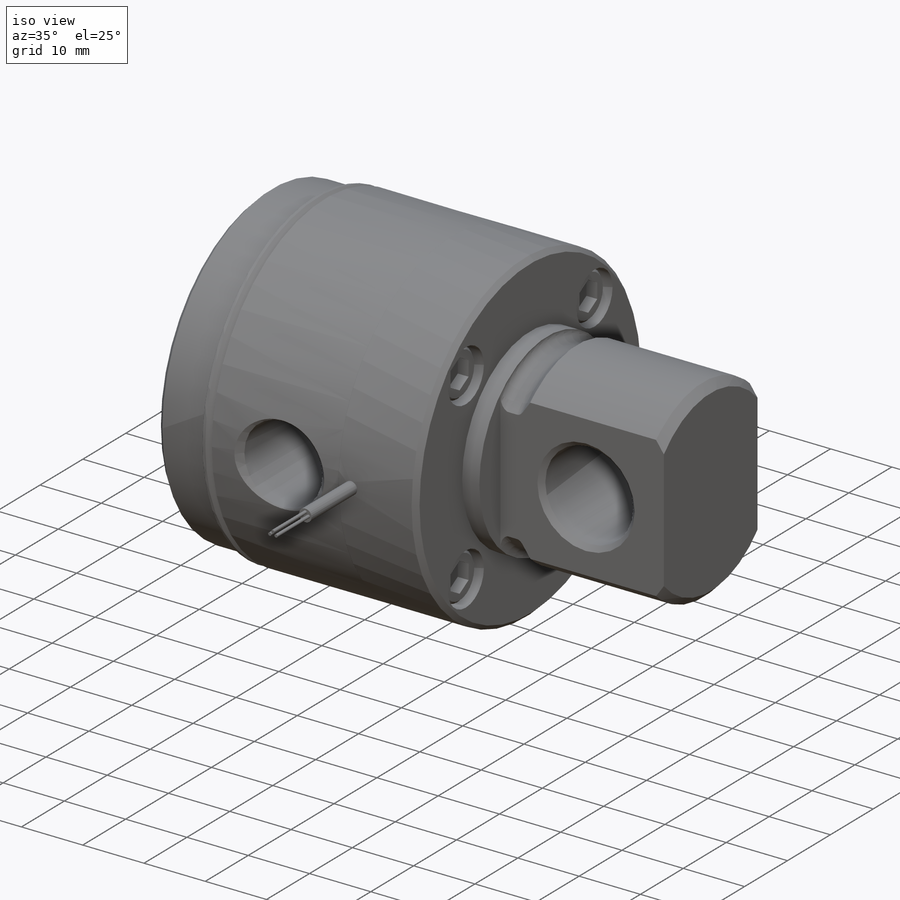
[diagram: iso view]
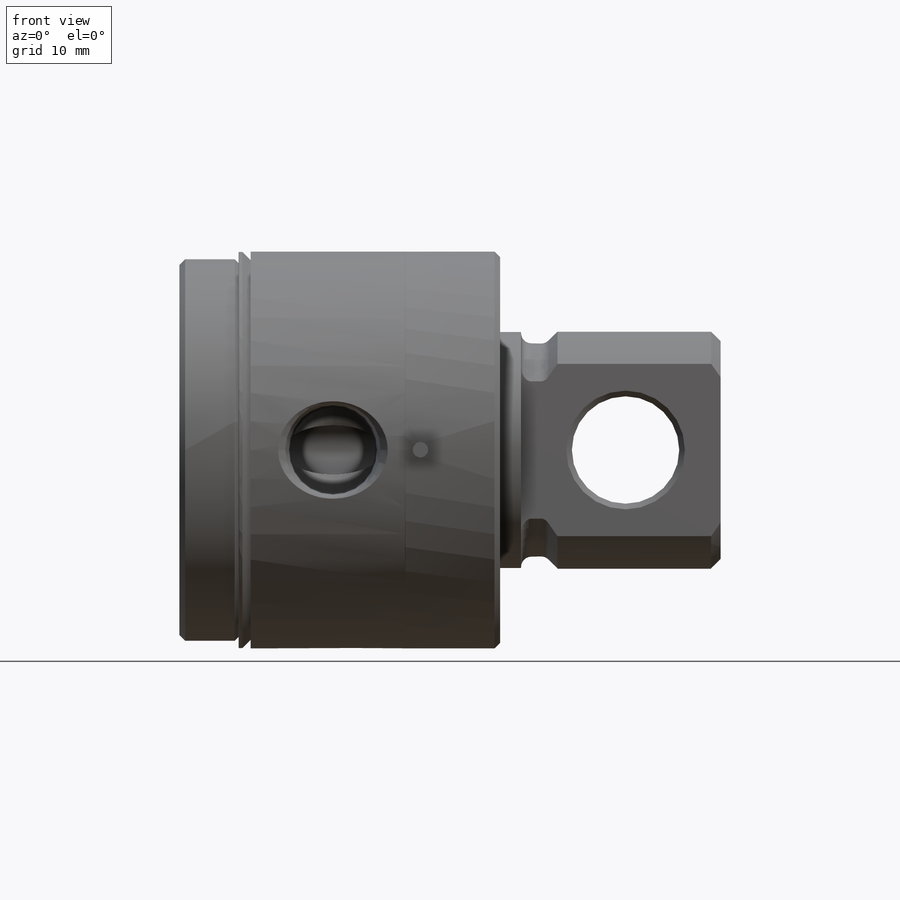
[diagram: front view]
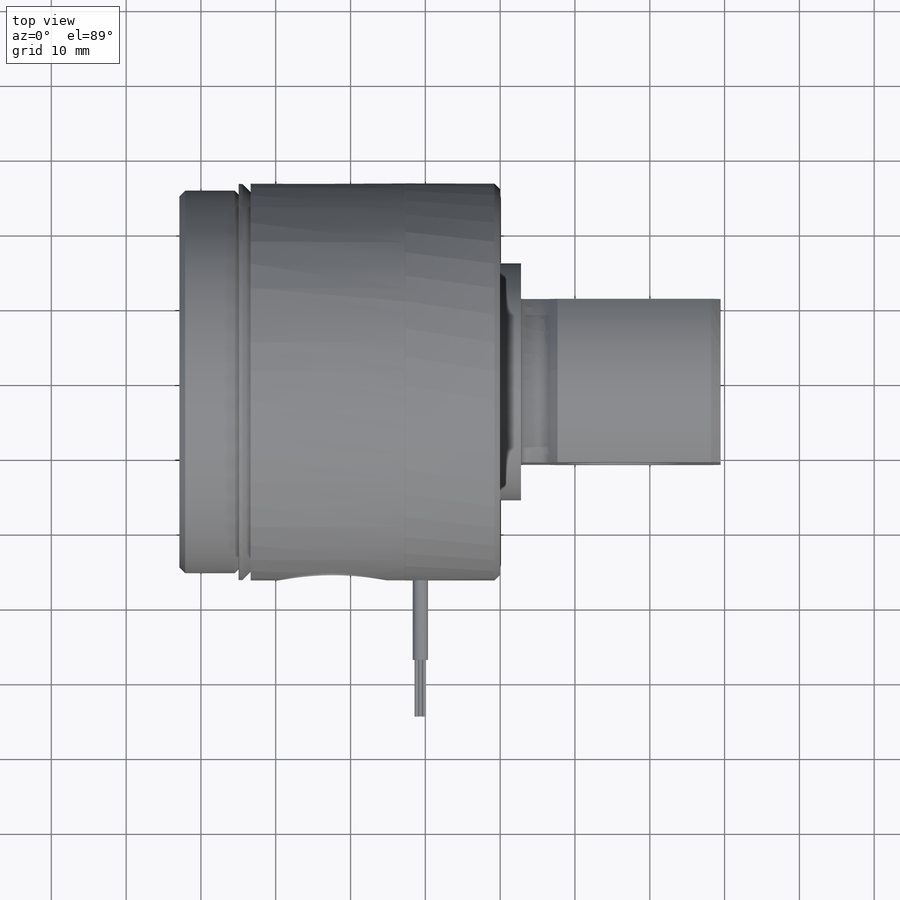
[diagram: top view]
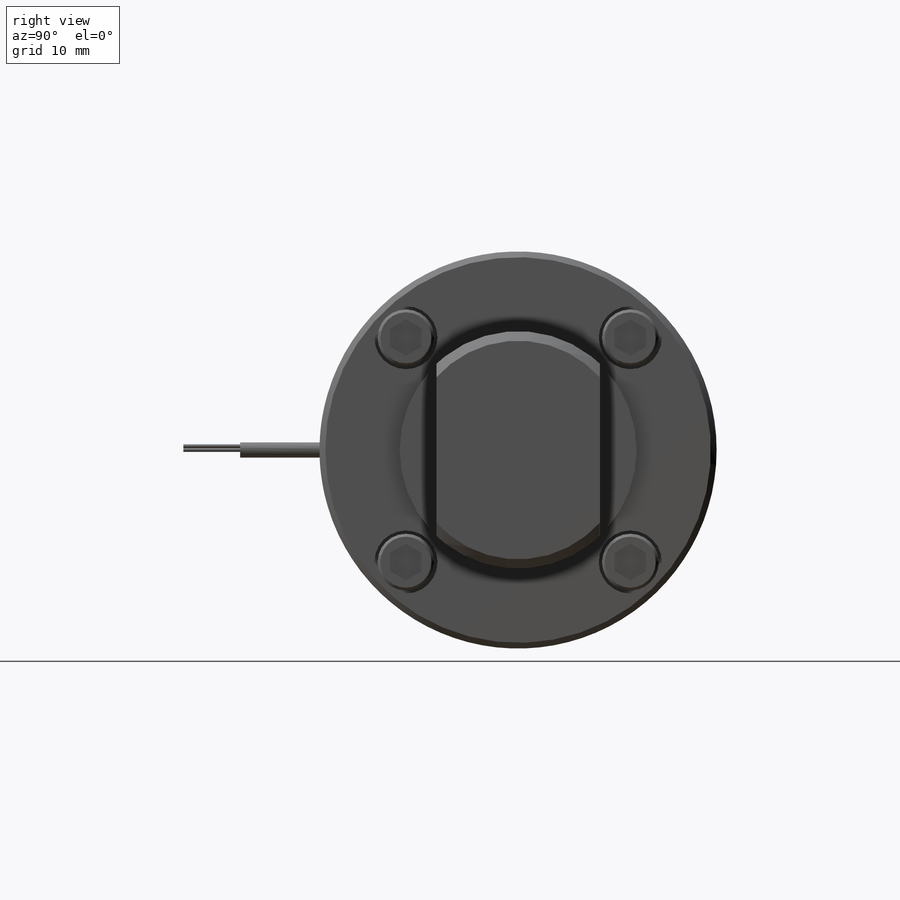
[diagram: right view]
SOLIDWORKS PART (.sldprt)
format: sldprt  version: not decoded by parser v0  size: 736,256 bytes
history: native  units: mm
features: plane x100, sketch x47, revolve x8, pattern_linear x3, cut_revolve x3, cut_extrude x2, thread x2, material x1, hole x1 (+12 scaffold rows collapsed; 1 parser-record rows omitted)
feature tree (180):
  scaffold x12  (default folders/planes/origin — collapsed)
  material  "Material <not specified>"
  plane  "Plane1"  Offset=0mm
  sketch  "Sketch1"
  revolve  "Revolve1"  Angle=360deg
  sketch  "Sketch2"
  revolve  "Revolve2"  Angle=360deg
  plane  "Plane2"  Offset=0mm
  hole  "Hole1"  Diameter=8.4328mm Depth=5.08mm
  sketch  "Sketch4"
  sketch  "Sketch3"  dims[Diameter=8.4328mm Depth=5.08mm]
  sketch  "Sketch5"
  pattern_linear  "LPattern1"  Count1=2 Count2=2 Spacing1=29.994055mm Spacing2=29.994055mm
  plane  "Plane3"
  sketch  "Sketch6"
  revolve  "Revolve3"  Angle=360deg
  sketch  "Sketch7"
  pattern_linear  "LPattern2"  Count1=2 Count2=2 Spacing1=29.994055mm Spacing2=29.994055mm
  plane  "Plane4"  Offset=1.016mm
  sketch  "Sketch8"
  cut_extrude  "Cut-Extrude1"  Depth=1.778mm
  sketch  "Sketch9"
  pattern_linear  "LPattern3"  Count1=2 Count2=2 Spacing1=29.994055mm Spacing2=29.994055mm
  sketch  "Sketch10"
  plane  "Plane5"  Offset=24.6634mm
  revolve  "Revolve4"  Angle=360deg
  sketch  "Sketch11"
  revolve  "Revolve5"  Angle=360deg
  sketch  "Sketch12"
  revolve  "Revolve6"  Angle=360deg
  plane  "Plane6"  Offset=10.668mm
  sketch  "Sketch13"
  revolve  "Revolve7"  Angle=360deg
  sketch  "Sketch14"
  cut_revolve  "Cut-Revolve1"  Angle=360deg
  sketch  "Sketch15"
  cut_revolve  "Cut-Revolve2"  [1 undecoded]
  thread  "Cosmetic Thread1"  Diameter=20.574mm  [1 undecoded]
  sketch  "Sketch16"
  revolve  "Revolve8"  [1 undecoded]
  thread  "Cosmetic Thread2"  Diameter=23.017068mm  [1 undecoded]
  plane  "Plane7"  Offset=2.794mm
  sketch  "Sketch17"
  cut_extrude  "Cut-Extrude2"  Depth=29.464mm
  sketch  "Sketch18"
  cut_revolve  "Cut-Revolve3"  Angle=360deg
  plane  "Plane8"  Offset=42.8752mm
  plane  "Plane9"  Offset=0mm
  plane  "Plane10"  Offset=0mm
  plane  "Plane11"  Offset=0mm
  plane  "Plane12"  Offset=33.655mm
  plane  "Plane13"  Offset=26.543mm
  parser-record x1  (decoder bookkeeping rows leaked as tree rows — omitted from the tree; the rows remain in map.json)
  plane  "IP1 XY"
  plane  "IP1 XZ"
  plane  "IP1 YZ"
  sketch  "IP1"
  plane  "a+stroke XY"
  plane  "a+stroke XZ"
  plane  "a+stroke YZ"
  sketch  "a+stroke"
  plane  "d1 XY"
  plane  "d1 XZ"
  plane  "d1 YZ"
  sketch  "d1"
  plane  "d2 XY"
  plane  "d2 XZ"
  plane  "d2 YZ"
  sketch  "d2"
  plane  "ff1 XY"
  plane  "ff1 XZ"
  plane  "ff1 YZ"
  sketch  "ff1"
  plane  "ff2 XY"
  plane  "ff2 XZ"
  plane  "ff2 YZ"
  sketch  "ff2"
  plane  "h1 XY"
  plane  "h1 XZ"
  plane  "h1 YZ"
  sketch  "h1"
  plane  "k1 XY"
  plane  "k1 XZ"
  plane  "k1 YZ"
  sketch  "k1"
  plane  "k2 XY"
  plane  "k2 XZ"
  plane  "k2 YZ"
  sketch  "k2"
  plane  "l1 XY"
  plane  "l1 XZ"
  plane  "l1 YZ"
  sketch  "l1"
  plane  "l2 XY"
  plane  "l2 XZ"
  plane  "l2 YZ"
  sketch  "l2"
  plane  "n1 XY"
  plane  "n1 XZ"
  plane  "n1 YZ"
  sketch  "n1"
  plane  "o1 XY"
  plane  "o1 XZ"
  plane  "o1 YZ"
  sketch  "o1"
  plane  "o2 XY"
  plane  "o2 XZ"
  plane  "o2 YZ"
  sketch  "o2"
  plane  "p1 XY"
  plane  "p1 XZ"
  plane  "p1 YZ"
  sketch  "p1"
  plane  "q1 XY"
  plane  "q1 XZ"
  plane  "q1 YZ"
  sketch  "q1"
  plane  "q2 XY"
  plane  "q2 XZ"
  plane  "q2 YZ"
  sketch  "q2"
  plane  "r1 XY"
  plane  "r1 XZ"
  plane  "r1 YZ"
  sketch  "r1"
  plane  "r2 XY"
  plane  "r2 XZ"
  plane  "r2 YZ"
  sketch  "r2"
  plane  "s1 XY"
  plane  "s1 XZ"
  plane  "s1 YZ"
  sketch  "s1"
  plane  "to_PCS XY"
  plane  "to_PCS XZ"
  plane  "to_PCS YZ"
  sketch  "to_PCS"
  plane  "to_bushing XY"
  plane  "to_bushing XZ"
  plane  "to_bushing YZ"
  sketch  "to_bushing"
  plane  "to_ft XY"
  plane  "to_ft XZ"
  plane  "to_ft YZ"
  sketch  "to_ft"
  plane  "to_nut XY"
  plane  "to_nut XZ"
  plane  "to_nut YZ"
  sketch  "to_nut"
  plane  "to_plug_connector XY"
  plane  "to_plug_connector XZ"
  plane  "to_plug_connector YZ"
  sketch  "to_plug_connector"
  plane  "to_tube XY"
  plane  "to_tube XZ"
  plane  "to_tube YZ"
  sketch  "to_tube"
  plane  "u XY"
  plane  "u XZ"
  plane  "u YZ"
  sketch  "u"
  plane  "v1 XY"
  plane  "v1 XZ"
  plane  "v1 YZ"
  sketch  "v1"
  plane  "v2 XY"
  plane  "v2 XZ"
  plane  "v2 YZ"
  sketch  "v2"
decode coverage: 18 of 66 modeling features carry decoded parameters
note: 4 parameter values undecoded
note: suppression state not decoded; provenance and decode notes live in map.json
